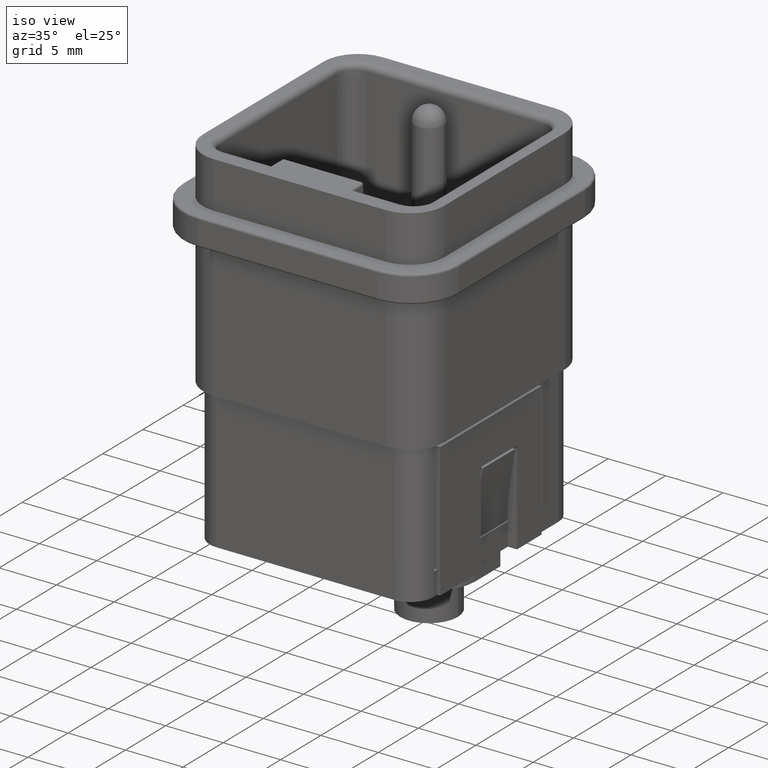
[diagram: clean part render]
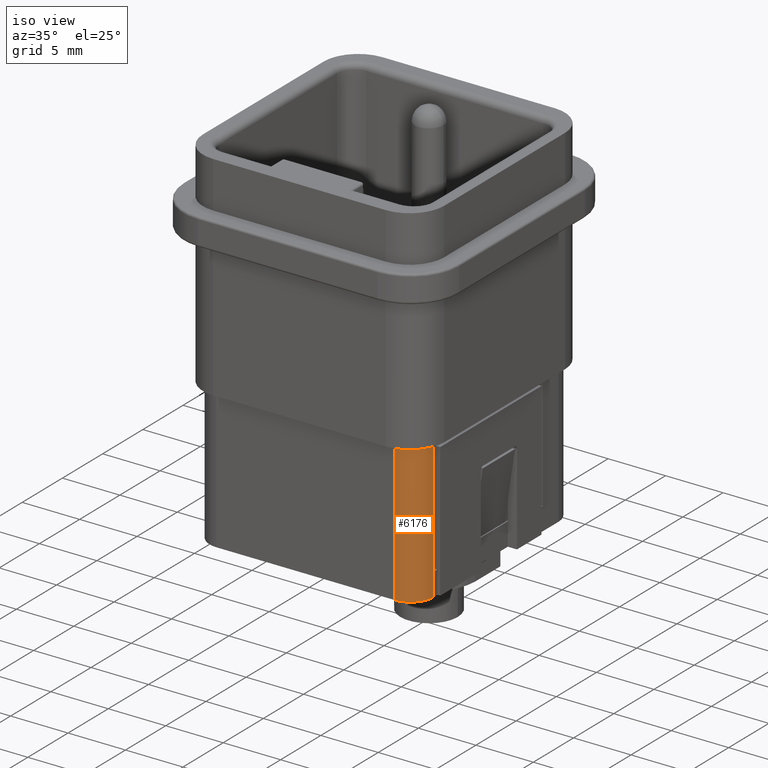
[diagram: same view with one face highlighted and labeled with its STEP entity id]
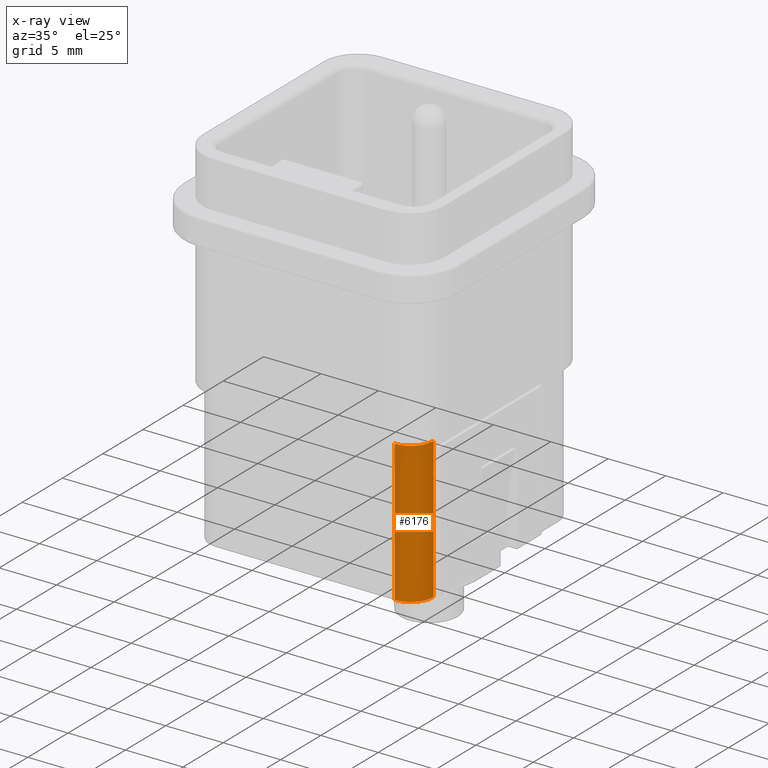
[diagram: x-ray of the same camera — body ghosted, the highlighted face saturated]
A machine part, iso view. The second image highlights one B-rep face of the part: STEP entity #6176.
The next image is the same camera in x-ray: the body ghosted, the highlighted face saturated — about 0% of this face is hidden behind the body in this view.
In plain terms, the highlighted cylindrical surface (edge-blend (fillet) strip) has radius 2 mm, axis along (0, 0, -1).
Its self-contained STEP definition (entity closure, byte-faithful):
#168=CARTESIAN_POINT('',(7.75E0,-7.75E0,1.02E1));
#169=DIRECTION('',(0.E0,0.E0,-1.E0));
#170=DIRECTION('',(1.E0,0.E0,0.E0));
#171=AXIS2_PLACEMENT_3D('',#168,#169,#170);
#1403=DIRECTION('',(0.E0,0.E0,1.E0));
#1404=VECTOR('',#1403,1.23E1);
#1405=CARTESIAN_POINT('',(7.75E0,-9.75E0,-2.1E0));
#1406=LINE('',#1405,#1404);
#1415=DIRECTION('',(0.E0,0.E0,1.E0));
#1416=VECTOR('',#1415,1.23E1);
#1417=CARTESIAN_POINT('',(9.75E0,-7.75E0,-2.1E0));
#1418=LINE('',#1417,#1416);
#1617=CARTESIAN_POINT('',(7.75E0,-7.75E0,-2.1E0));
#1618=DIRECTION('',(0.E0,0.E0,1.E0));
#1619=DIRECTION('',(0.E0,-1.E0,0.E0));
#1620=AXIS2_PLACEMENT_3D('',#1617,#1618,#1619);
#3433=CARTESIAN_POINT('',(9.75E0,-7.75E0,1.02E1));
#3434=VERTEX_POINT('',#3433);
#3435=CARTESIAN_POINT('',(7.75E0,-9.75E0,1.02E1));
#3436=VERTEX_POINT('',#3435);
#3690=CARTESIAN_POINT('',(7.75E0,-9.75E0,-2.1E0));
#3691=VERTEX_POINT('',#3690);
#3692=CARTESIAN_POINT('',(9.75E0,-7.75E0,-2.1E0));
#3693=VERTEX_POINT('',#3692);
#6163=CARTESIAN_POINT('',(7.75E0,-7.75E0,1.03E1));
#6164=DIRECTION('',(0.E0,0.E0,-1.E0));
#6165=DIRECTION('',(1.E0,0.E0,0.E0));
#6166=AXIS2_PLACEMENT_3D('',#6163,#6164,#6165);
#6167=CYLINDRICAL_SURFACE('',#6166,2.E0);
#6169=ORIENTED_EDGE('',*,*,#6168,.F.);
#6171=ORIENTED_EDGE('',*,*,#6170,.F.);
#6172=ORIENTED_EDGE('',*,*,#6154,.T.);
#6173=ORIENTED_EDGE('',*,*,#4419,.F.);
#6174=EDGE_LOOP('',(#6169,#6171,#6172,#6173));
#6175=FACE_OUTER_BOUND('',#6174,.F.);
#6176=ADVANCED_FACE('',(#6175),#6167,.T.);
#172=CIRCLE('',#171,2.E0);
#1621=CIRCLE('',#1620,2.E0);
#4419=EDGE_CURVE('',#3434,#3436,#172,.T.);
#6154=EDGE_CURVE('',#3691,#3436,#1406,.T.);
#6168=EDGE_CURVE('',#3693,#3434,#1418,.T.);
#6170=EDGE_CURVE('',#3691,#3693,#1621,.T.);